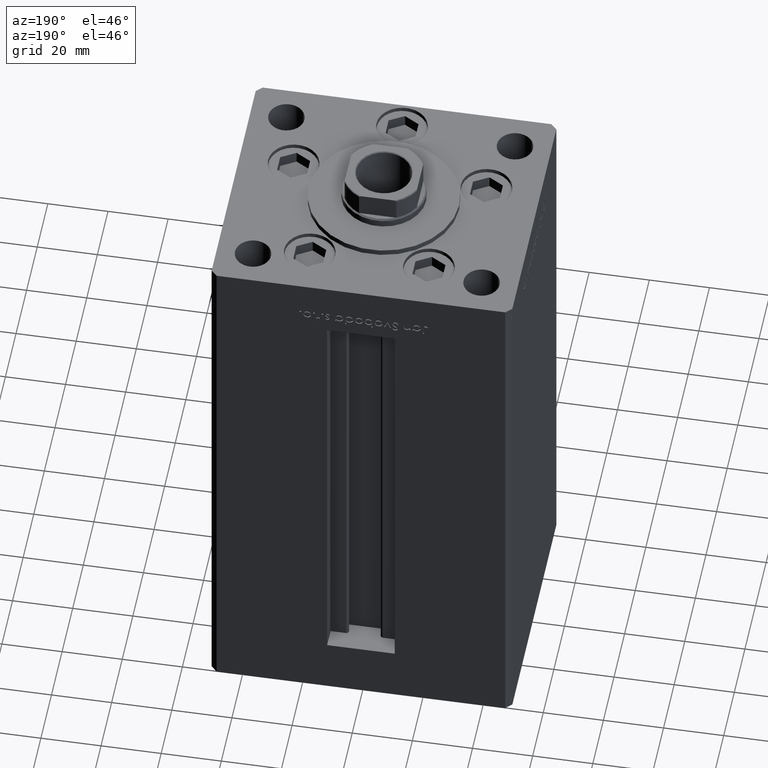
[diagram: clean part render]
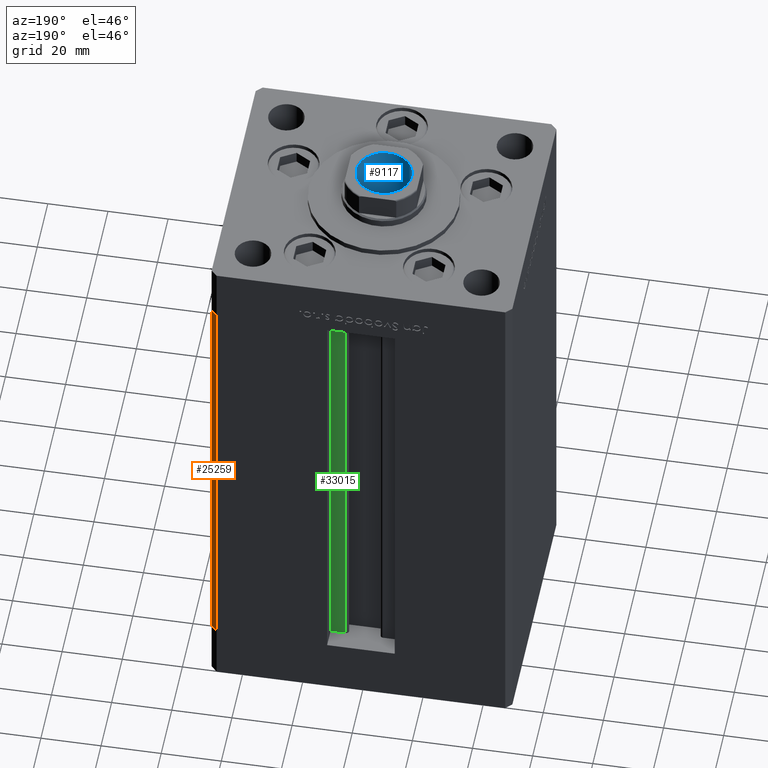
[diagram: same view with three faces highlighted in distinct colors, each labeled with its STEP entity id]
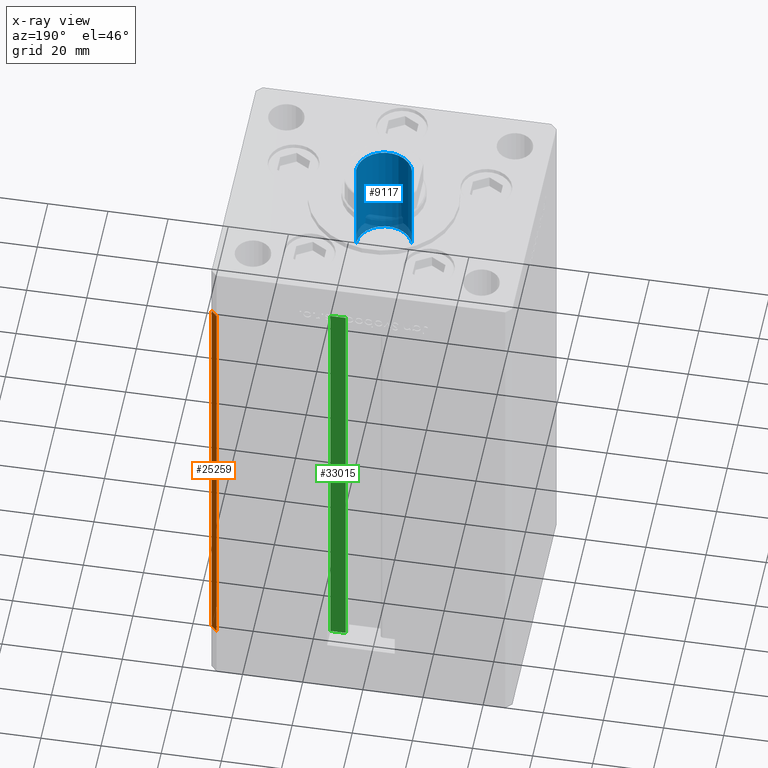
[diagram: x-ray of the same camera — body ghosted, the three highlighted faces saturated]
A machine part, auxiliary view with three faces highlighted in distinct colors.
The next image is the same camera in x-ray (body ghosted, the three faces saturated) — at least one of them is partly hidden behind the body in this view.
Their STEP definitions:

[orange] entity #25259 — the highlighted planar face has unit normal (0.7071, 0.7071, 0).
#1823 = DIRECTION ( 'NONE',  ( 0.7071067811865487940, -0.7071067811865463515, 0.000000000000000000 ) ) ;
#3148 = VERTEX_POINT ( 'NONE', #29051 ) ;
#3676 = LINE ( 'NONE', #7894, #3981 ) ;
#3981 = VECTOR ( 'NONE', #19507, 1000.000000000000000 ) ;
#6564 = DIRECTION ( 'NONE',  ( -0.7071067811865487940, 0.7071067811865463515, 0.000000000000000000 ) ) ;
#7086 = FACE_OUTER_BOUND ( 'NONE', #50971, .T. ) ;
#7345 = PLANE ( 'NONE',  #22159 ) ;
#7894 = CARTESIAN_POINT ( 'NONE',  ( 50.00000000000001421, 41.49999999999999289, 148.5000000000000000 ) ) ;
#9127 = VECTOR ( 'NONE', #20078, 1000.000000000000000 ) ;
#9483 = ORIENTED_EDGE ( 'NONE', *, *, #40025, .F. ) ;
#9984 = LINE ( 'NONE', #37976, #39336 ) ;
#11368 = LINE ( 'NONE', #39348, #9127 ) ;
#11840 = CARTESIAN_POINT ( 'NONE',  ( 48.00000000000000711, 43.50000000000000000, 148.5000000000000000 ) ) ;
#12223 = LINE ( 'NONE', #24370, #32590 ) ;
#15078 = ORIENTED_EDGE ( 'NONE', *, *, #34552, .F. ) ;
#19507 = DIRECTION ( 'NONE',  ( -0.000000000000000000, -0.000000000000000000, -1.000000000000000000 ) ) ;
#20078 = DIRECTION ( 'NONE',  ( 0.7071067811865487940, -0.7071067811865463515, 0.000000000000000000 ) ) ;
#22159 = AXIS2_PLACEMENT_3D ( 'NONE', #11840, #30859, #6564 ) ;
#24370 = CARTESIAN_POINT ( 'NONE',  ( 48.00000000000000711, 43.50000000000000000, 148.5000000000000000 ) ) ;
#25259 = ADVANCED_FACE ( 'NONE', ( #7086 ), #7345, .T. ) ;
#29051 = CARTESIAN_POINT ( 'NONE',  ( 48.00000000000000711, 43.50000000000000000, 0.000000000000000000 ) ) ;
#29844 = CARTESIAN_POINT ( 'NONE',  ( 50.00000000000001421, 41.49999999999999289, 148.5000000000000000 ) ) ;
#30072 = VERTEX_POINT ( 'NONE', #29844 ) ;
#30859 = DIRECTION ( 'NONE',  ( 0.7071067811865463515, 0.7071067811865487940, -0.000000000000000000 ) ) ;
#32590 = VECTOR ( 'NONE', #40466, 1000.000000000000000 ) ;
#34552 = EDGE_CURVE ( 'NONE', #40855, #3148, #12223, .T. ) ;
#35620 = EDGE_CURVE ( 'NONE', #30072, #49548, #3676, .T. ) ;
#37940 = ORIENTED_EDGE ( 'NONE', *, *, #35620, .T. ) ;
#37976 = CARTESIAN_POINT ( 'NONE',  ( 48.00000000000000711, 43.50000000000000000, 0.000000000000000000 ) ) ;
#39336 = VECTOR ( 'NONE', #1823, 1000.000000000000000 ) ;
#39348 = CARTESIAN_POINT ( 'NONE',  ( 48.00000000000000711, 43.50000000000000000, 148.5000000000000000 ) ) ;
#40025 = EDGE_CURVE ( 'NONE', #3148, #49548, #9984, .T. ) ;
#40466 = DIRECTION ( 'NONE',  ( -0.000000000000000000, -0.000000000000000000, -1.000000000000000000 ) ) ;
#40855 = VERTEX_POINT ( 'NONE', #41108 ) ;
#41108 = CARTESIAN_POINT ( 'NONE',  ( 48.00000000000000711, 43.50000000000000000, 148.5000000000000000 ) ) ;
#43537 = EDGE_CURVE ( 'NONE', #40855, #30072, #11368, .T. ) ;
#43757 = CARTESIAN_POINT ( 'NONE',  ( 50.00000000000001421, 41.49999999999999289, 0.000000000000000000 ) ) ;
#45013 = ORIENTED_EDGE ( 'NONE', *, *, #43537, .T. ) ;
#49548 = VERTEX_POINT ( 'NONE', #43757 ) ;
#50971 = EDGE_LOOP ( 'NONE', ( #9483, #15078, #45013, #37940 ) ) ;

[blue] entity #9117 — the highlighted cylindrical surface (edge-blend (fillet) strip) has radius 9.25 mm, axis along (0, 0, 1).
#384 = DIRECTION ( 'NONE',  ( 1.000000000000000000, 0.000000000000000000, 0.000000000000000000 ) ) ;
#2360 = ORIENTED_EDGE ( 'NONE', *, *, #3632, .T. ) ;
#3606 = CARTESIAN_POINT ( 'NONE',  ( 9.249999999999996447, 0.000000000000000000, 165.2500000000000000 ) ) ;
#3632 = EDGE_CURVE ( 'NONE', #51606, #8734, #28517, .T. ) ;
#4648 = CARTESIAN_POINT ( 'NONE',  ( -9.249999999999996447, 1.132798289211301304E-15, 164.9499999999999886 ) ) ;
#5983 = CARTESIAN_POINT ( 'NONE',  ( 9.249999999999994671, 0.000000000000000000, 130.2500000000000000 ) ) ;
#7085 = VERTEX_POINT ( 'NONE', #39419 ) ;
#8734 = VERTEX_POINT ( 'NONE', #20812 ) ;
#8806 = FACE_OUTER_BOUND ( 'NONE', #12828, .T. ) ;
#9117 = ADVANCED_FACE ( 'NONE', ( #8806 ), #16739, .F. ) ;
#10232 = LINE ( 'NONE', #39780, #16645 ) ;
#12828 = EDGE_LOOP ( 'NONE', ( #38130, #48397, #2360, #38262 ) ) ;
#13287 = CARTESIAN_POINT ( 'NONE',  ( 0.000000000000000000, 0.000000000000000000, 165.2500000000000000 ) ) ;
#16645 = VECTOR ( 'NONE', #23685, 1000.000000000000000 ) ;
#16739 = CYLINDRICAL_SURFACE ( 'NONE', #34537, 9.249999999999996447 ) ;
#17722 = CARTESIAN_POINT ( 'NONE',  ( 0.000000000000000000, 0.000000000000000000, 130.2500000000000000 ) ) ;
#20812 = CARTESIAN_POINT ( 'NONE',  ( 9.249999999999996447, 0.000000000000000000, 164.9499999999999886 ) ) ;
#23685 = DIRECTION ( 'NONE',  ( -0.000000000000000000, -0.000000000000000000, 1.000000000000000000 ) ) ;
#24243 = CIRCLE ( 'NONE', #28463, 9.249999999999994671 ) ;
#25180 = CARTESIAN_POINT ( 'NONE',  ( 0.000000000000000000, 0.000000000000000000, 164.9499999999999886 ) ) ;
#27383 = EDGE_CURVE ( 'NONE', #51383, #8734, #32119, .T. ) ;
#28463 = AXIS2_PLACEMENT_3D ( 'NONE', #17722, #45955, #50156 ) ;
#28517 = CIRCLE ( 'NONE', #49561, 9.249999999999996447 ) ;
#32119 = LINE ( 'NONE', #3606, #45014 ) ;
#33630 = DIRECTION ( 'NONE',  ( 0.000000000000000000, 0.000000000000000000, 1.000000000000000000 ) ) ;
#34537 = AXIS2_PLACEMENT_3D ( 'NONE', #13287, #45486, #384 ) ;
#35812 = DIRECTION ( 'NONE',  ( -0.000000000000000000, -0.000000000000000000, 1.000000000000000000 ) ) ;
#37719 = EDGE_CURVE ( 'NONE', #7085, #51606, #10232, .T. ) ;
#38130 = ORIENTED_EDGE ( 'NONE', *, *, #38763, .F. ) ;
#38262 = ORIENTED_EDGE ( 'NONE', *, *, #27383, .F. ) ;
#38763 = EDGE_CURVE ( 'NONE', #7085, #51383, #24243, .T. ) ;
#39419 = CARTESIAN_POINT ( 'NONE',  ( -9.249999999999994671, 1.132798289211300909E-15, 130.2500000000000000 ) ) ;
#39780 = CARTESIAN_POINT ( 'NONE',  ( -9.249999999999996447, 1.132798289211301304E-15, 165.2500000000000000 ) ) ;
#45014 = VECTOR ( 'NONE', #35812, 1000.000000000000000 ) ;
#45486 = DIRECTION ( 'NONE',  ( -0.000000000000000000, -0.000000000000000000, 1.000000000000000000 ) ) ;
#45955 = DIRECTION ( 'NONE',  ( -0.000000000000000000, -0.000000000000000000, 1.000000000000000000 ) ) ;
#48397 = ORIENTED_EDGE ( 'NONE', *, *, #37719, .T. ) ;
#49561 = AXIS2_PLACEMENT_3D ( 'NONE', #25180, #33630, #49706 ) ;
#49706 = DIRECTION ( 'NONE',  ( 1.000000000000000000, 0.000000000000000000, 0.000000000000000000 ) ) ;
#50156 = DIRECTION ( 'NONE',  ( 1.000000000000000000, 0.000000000000000000, 0.000000000000000000 ) ) ;
#51383 = VERTEX_POINT ( 'NONE', #5983 ) ;
#51606 = VERTEX_POINT ( 'NONE', #4648 ) ;

[green] entity #33015 — the highlighted planar face has unit normal (0, -1, 0).
#1042 = CARTESIAN_POINT ( 'NONE',  ( 11.24999999999999822, 36.99999999999999289, 148.5000000000000000 ) ) ;
#2385 = CARTESIAN_POINT ( 'NONE',  ( 11.24999999999999822, 36.99999999999999289, 0.000000000000000000 ) ) ;
#2908 = CARTESIAN_POINT ( 'NONE',  ( 6.183333333333997928, 36.99999999999999289, 148.5000000000000000 ) ) ;
#3763 = DIRECTION ( 'NONE',  ( -0.000000000000000000, -0.000000000000000000, 1.000000000000000000 ) ) ;
#4027 = CARTESIAN_POINT ( 'NONE',  ( 6.183333333333997928, 36.99999999999999289, 0.000000000000000000 ) ) ;
#4689 = DIRECTION ( 'NONE',  ( 1.000000000000000000, 0.000000000000000000, 0.000000000000000000 ) ) ;
#5544 = AXIS2_PLACEMENT_3D ( 'NONE', #18946, #51134, #19471 ) ;
#7325 = FACE_OUTER_BOUND ( 'NONE', #36876, .T. ) ;
#8510 = EDGE_CURVE ( 'NONE', #18854, #22311, #18724, .T. ) ;
#9757 = VECTOR ( 'NONE', #4689, 1000.000000000000000 ) ;
#14179 = ORIENTED_EDGE ( 'NONE', *, *, #33085, .F. ) ;
#14208 = EDGE_CURVE ( 'NONE', #48242, #22311, #23809, .T. ) ;
#14358 = ORIENTED_EDGE ( 'NONE', *, *, #14208, .T. ) ;
#18204 = DIRECTION ( 'NONE',  ( -1.000000000000000000, 0.000000000000000000, 0.000000000000000000 ) ) ;
#18724 = LINE ( 'NONE', #38523, #50533 ) ;
#18854 = VERTEX_POINT ( 'NONE', #1042 ) ;
#18946 = CARTESIAN_POINT ( 'NONE',  ( 6.183333333333997928, 36.99999999999999289, 0.000000000000000000 ) ) ;
#19471 = DIRECTION ( 'NONE',  ( 0.000000000000000000, -0.000000000000000000, -1.000000000000000000 ) ) ;
#22311 = VERTEX_POINT ( 'NONE', #2908 ) ;
#22910 = PLANE ( 'NONE',  #5544 ) ;
#23809 = LINE ( 'NONE', #39912, #26359 ) ;
#24191 = VERTEX_POINT ( 'NONE', #2385 ) ;
#24485 = CARTESIAN_POINT ( 'NONE',  ( 6.183333333333997928, 36.99999999999999289, 0.000000000000000000 ) ) ;
#26070 = ORIENTED_EDGE ( 'NONE', *, *, #8510, .F. ) ;
#26359 = VECTOR ( 'NONE', #3763, 1000.000000000000000 ) ;
#29600 = VECTOR ( 'NONE', #37656, 1000.000000000000000 ) ;
#29962 = ORIENTED_EDGE ( 'NONE', *, *, #49664, .F. ) ;
#33015 = ADVANCED_FACE ( 'NONE', ( #7325 ), #22910, .F. ) ;
#33085 = EDGE_CURVE ( 'NONE', #48242, #24191, #52190, .T. ) ;
#33186 = LINE ( 'NONE', #49259, #29600 ) ;
#36876 = EDGE_LOOP ( 'NONE', ( #29962, #14179, #14358, #26070 ) ) ;
#37656 = DIRECTION ( 'NONE',  ( -0.000000000000000000, -0.000000000000000000, 1.000000000000000000 ) ) ;
#38523 = CARTESIAN_POINT ( 'NONE',  ( 0.000000000000000000, 36.99999999999999289, 148.5000000000000000 ) ) ;
#39912 = CARTESIAN_POINT ( 'NONE',  ( 6.183333333333997928, 36.99999999999999289, 0.000000000000000000 ) ) ;
#48242 = VERTEX_POINT ( 'NONE', #4027 ) ;
#49259 = CARTESIAN_POINT ( 'NONE',  ( 11.24999999999999822, 36.99999999999999289, 0.000000000000000000 ) ) ;
#49664 = EDGE_CURVE ( 'NONE', #24191, #18854, #33186, .T. ) ;
#50533 = VECTOR ( 'NONE', #18204, 1000.000000000000000 ) ;
#51134 = DIRECTION ( 'NONE',  ( 0.000000000000000000, -1.000000000000000000, 0.000000000000000000 ) ) ;
#52190 = LINE ( 'NONE', #24485, #9757 ) ;